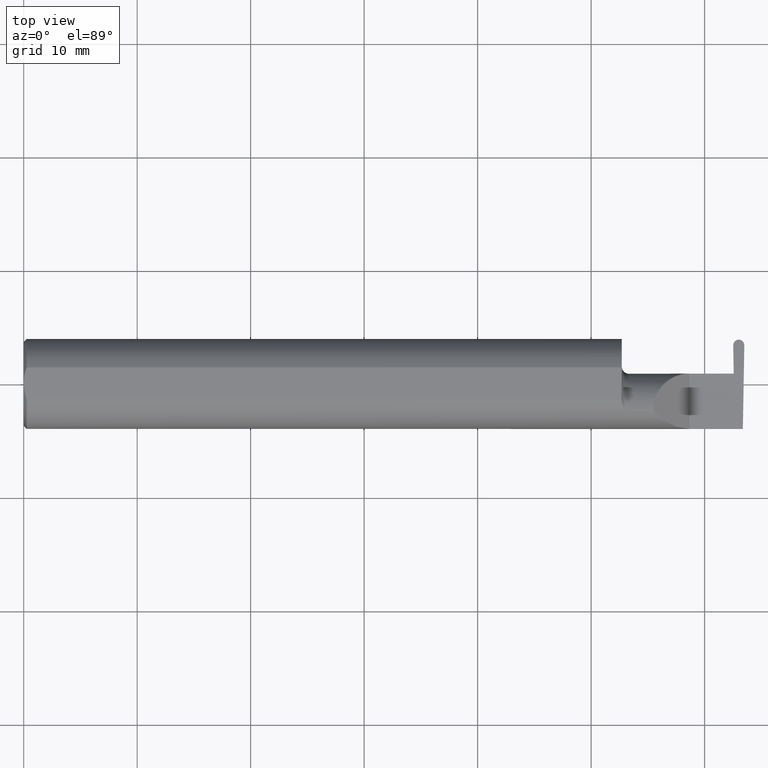
[diagram: clean part render]
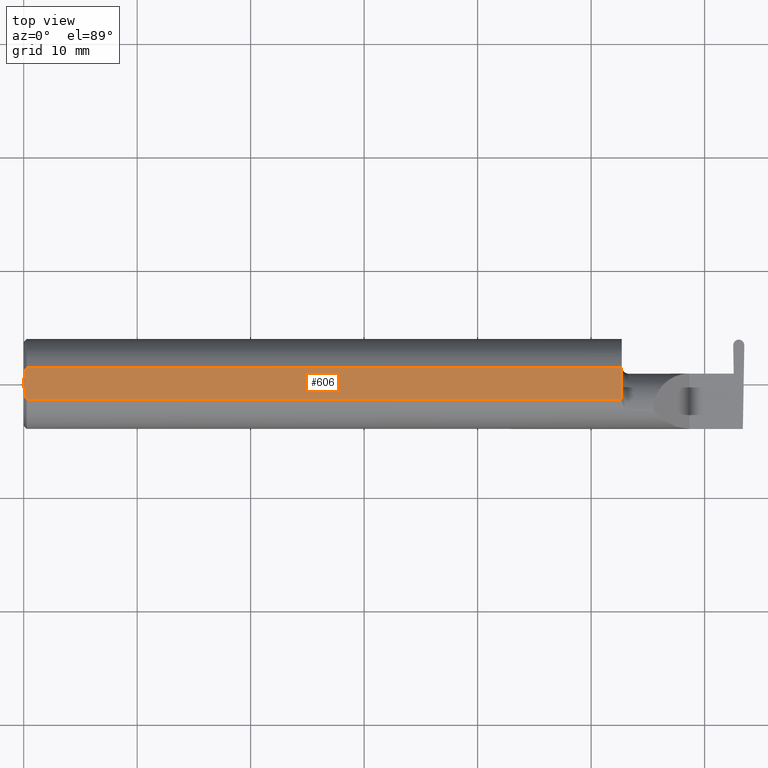
[diagram: same view with one face highlighted and labeled with its STEP entity id]
A machine part, top view. The second image highlights one B-rep face of the part: STEP entity #606.
In plain terms, the highlighted planar face has unit normal (0, 0, 1).
Its self-contained STEP definition (entity closure, byte-faithful):
#16 = CARTESIAN_POINT ( 'NONE',  ( 0.000000000000000000, 0.000000000000000000, 0.1460999999999998689 ) ) ;
#25 = VECTOR ( 'NONE', #349, 39.37007874015748143 ) ;
#31 = CARTESIAN_POINT ( 'NONE',  ( 0.000000000000000000, 0.05497272050753933964, 0.1460999999999998689 ) ) ;
#52 = LINE ( 'NONE', #669, #703 ) ;
#60 = DIRECTION ( 'NONE',  ( 1.000000000000000000, 0.000000000000000000, -0.000000000000000000 ) ) ;
#73 = CARTESIAN_POINT ( 'NONE',  ( 2.814752029381861309, 0.1560999999999999888, 0.1460999999999998689 ) ) ;
#98 = ORIENTED_EDGE ( 'NONE', *, *, #717, .F. ) ;
#105 = LINE ( 'NONE', #357, #303 ) ;
#107 = EDGE_CURVE ( 'NONE', #334, #132, #105, .T. ) ;
#126 = CARTESIAN_POINT ( 'NONE',  ( 0.004370115738487063105, 0.03710696786819756010, 0.1460999999999998411 ) ) ;
#132 = VERTEX_POINT ( 'NONE', #620 ) ;
#207 = VERTEX_POINT ( 'NONE', #685 ) ;
#270 = ORIENTED_EDGE ( 'NONE', *, *, #418, .T. ) ;
#271 = B_SPLINE_CURVE_WITH_KNOTS ( 'NONE', 3,
 ( #383, #555, #379, #126, #621, #314 ),
 .UNSPECIFIED., .F., .F.,
 ( 4, 2, 4 ),
 ( 0.002914391749015463051, 0.003623333355014857204, 0.004332274961014251358 ),
 .UNSPECIFIED. ) ;
#290 = EDGE_CURVE ( 'NONE', #469, #776, #761, .T. ) ;
#301 = DIRECTION ( 'NONE',  ( 0.000000000000000000, 1.000000000000000000, 0.000000000000000000 ) ) ;
#303 = VECTOR ( 'NONE', #600, 39.37007874015748143 ) ;
#314 = CARTESIAN_POINT ( 'NONE',  ( 0.01000000000000013205, 0.05497272050753933964, 0.1460999999999998689 ) ) ;
#332 = CARTESIAN_POINT ( 'NONE',  ( 0.0009113193687670144904, -0.01867274705588957071, 0.1460999999999998411 ) ) ;
#334 = VERTEX_POINT ( 'NONE', #524 ) ;
#349 = DIRECTION ( 'NONE',  ( -1.000000000000000000, -0.000000000000000000, -0.000000000000000000 ) ) ;
#357 = CARTESIAN_POINT ( 'NONE',  ( 0.000000000000000000, -0.05497272050753933964, 0.1460999999999998689 ) ) ;
#358 = AXIS2_PLACEMENT_3D ( 'NONE', #73, #499, #60 ) ;
#365 = EDGE_CURVE ( 'NONE', #334, #207, #707, .T. ) ;
#379 = CARTESIAN_POINT ( 'NONE',  ( 0.0009290501461040111091, 0.01879395969143608097, 0.1460999999999998689 ) ) ;
#383 = CARTESIAN_POINT ( 'NONE',  ( 0.000000000000000000, 0.000000000000000000, 0.1460999999999998689 ) ) ;
#393 = CARTESIAN_POINT ( 'NONE',  ( 0.006903212852521220001, -0.04617911398309930415, 0.1460999999999998689 ) ) ;
#398 = CARTESIAN_POINT ( 'NONE',  ( -6.292721147515215909E-17, -0.009387766318748835132, 0.1460999999999998689 ) ) ;
#417 = ORIENTED_EDGE ( 'NONE', *, *, #365, .F. ) ;
#418 = EDGE_CURVE ( 'NONE', #132, #469, #52, .T. ) ;
#426 = CARTESIAN_POINT ( 'NONE',  ( 2.075000000000000178, 0.05497272050753933964, 0.1460999999999998689 ) ) ;
#445 = PLANE ( 'NONE',  #358 ) ;
#469 = VERTEX_POINT ( 'NONE', #426 ) ;
#499 = DIRECTION ( 'NONE',  ( 0.000000000000000000, 0.000000000000000000, 1.000000000000000000 ) ) ;
#505 = ORIENTED_EDGE ( 'NONE', *, *, #107, .T. ) ;
#524 = CARTESIAN_POINT ( 'NONE',  ( 0.01000000000000013205, -0.05497272050753933964, 0.1460999999999998689 ) ) ;
#525 = EDGE_LOOP ( 'NONE', ( #505, #270, #797, #98, #417 ) ) ;
#555 = CARTESIAN_POINT ( 'NONE',  ( -6.265209250606362652E-17, 0.009396510398413125686, 0.1460999999999998689 ) ) ;
#564 = CARTESIAN_POINT ( 'NONE',  ( 0.01000000000000013205, 0.05497272050753933964, 0.1460999999999998689 ) ) ;
#600 = DIRECTION ( 'NONE',  ( 1.000000000000000000, 0.000000000000000000, 0.000000000000000000 ) ) ;
#606 = ADVANCED_FACE ( 'NONE', ( #691 ), #445, .T. ) ;
#620 = CARTESIAN_POINT ( 'NONE',  ( 2.075000000000000178, -0.05497272050753934658, 0.1460999999999998689 ) ) ;
#621 = CARTESIAN_POINT ( 'NONE',  ( 0.006876379561362894709, 0.04610291843171884091, 0.1460999999999998689 ) ) ;
#637 = CARTESIAN_POINT ( 'NONE',  ( 0.004356241145161886263, -0.03705973501792376307, 0.1460999999999998689 ) ) ;
#669 = CARTESIAN_POINT ( 'NONE',  ( 2.075000000000000178, 0.1560999999999999888, 0.1460999999999998689 ) ) ;
#685 = CARTESIAN_POINT ( 'NONE',  ( 0.000000000000000000, 0.000000000000000000, 0.1460999999999998689 ) ) ;
#691 = FACE_OUTER_BOUND ( 'NONE', #525, .T. ) ;
#703 = VECTOR ( 'NONE', #301, 39.37007874015748143 ) ;
#707 = B_SPLINE_CURVE_WITH_KNOTS ( 'NONE', 3,
 ( #719, #393, #637, #332, #398, #16 ),
 .UNSPECIFIED., .F., .F.,
 ( 4, 2, 4 ),
 ( 0.001497827971916939694, 0.002206109860466201264, 0.002914391749015463051 ),
 .UNSPECIFIED. ) ;
#717 = EDGE_CURVE ( 'NONE', #207, #776, #271, .T. ) ;
#719 = CARTESIAN_POINT ( 'NONE',  ( 0.01000000000000013205, -0.05497272050753933964, 0.1460999999999998689 ) ) ;
#761 = LINE ( 'NONE', #31, #25 ) ;
#776 = VERTEX_POINT ( 'NONE', #564 ) ;
#797 = ORIENTED_EDGE ( 'NONE', *, *, #290, .T. ) ;